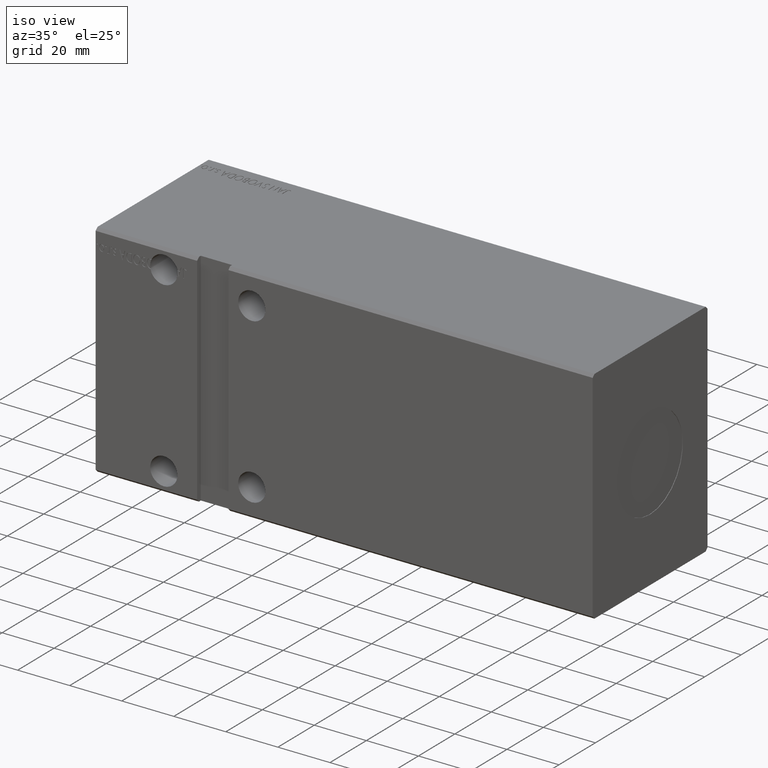
[diagram: clean part render]
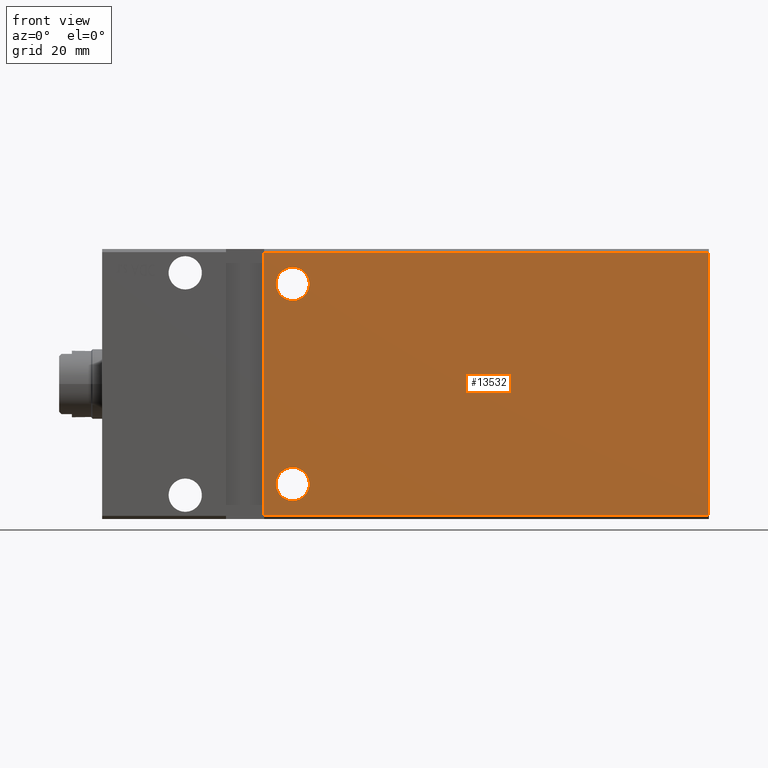
[diagram: tour spotlight — one face highlighted and labeled with its STEP entity id]
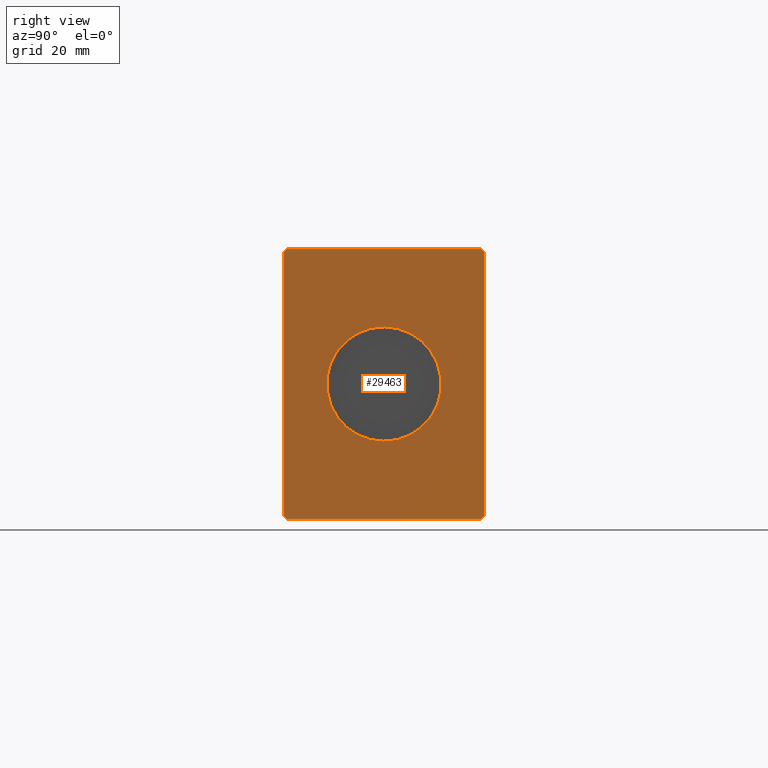
[diagram: tour spotlight — one face highlighted and labeled with its STEP entity id]
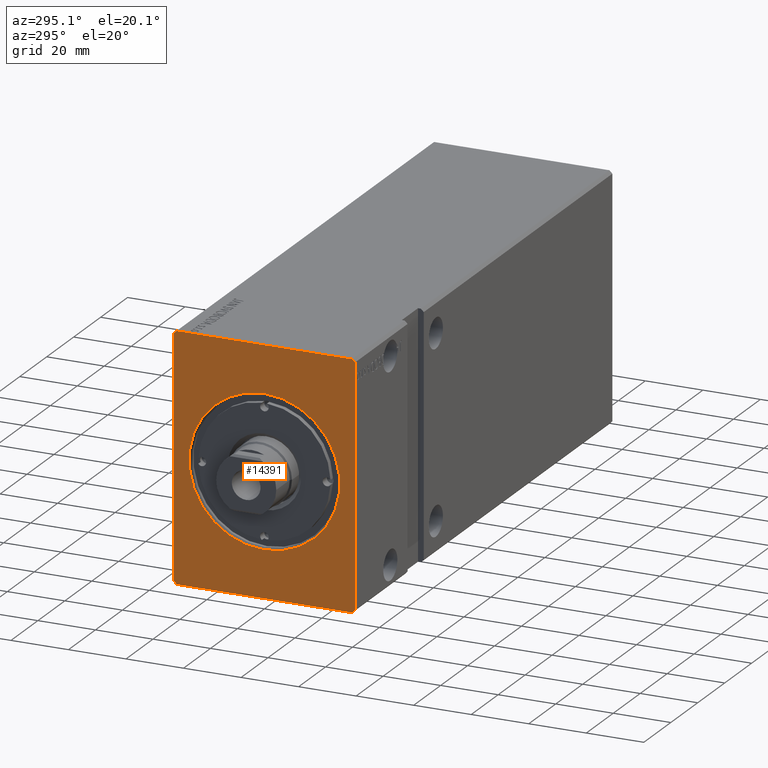
[diagram: tour spotlight — one face highlighted and labeled with its STEP entity id]
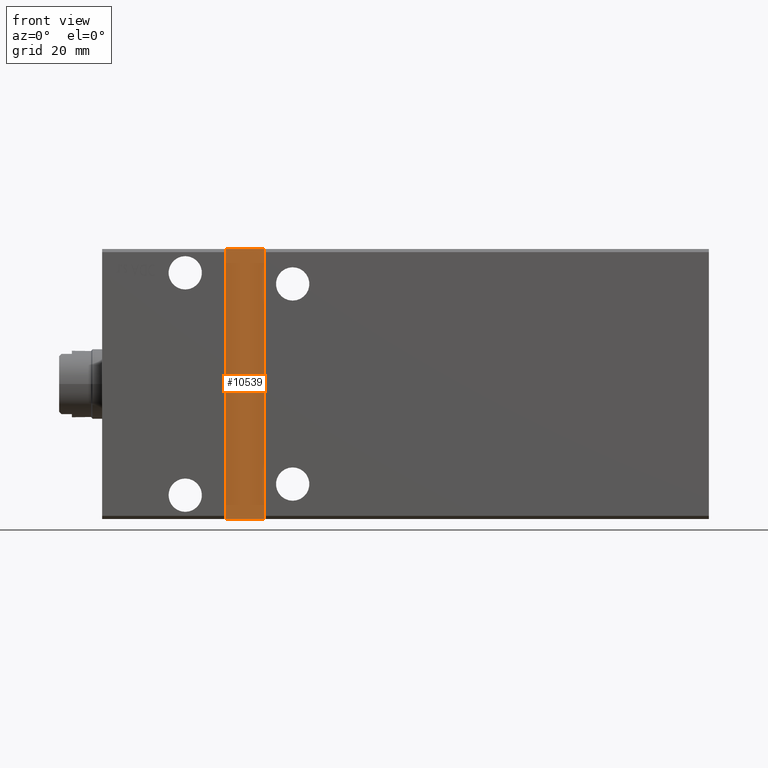
[diagram: tour spotlight — one face highlighted and labeled with its STEP entity id]
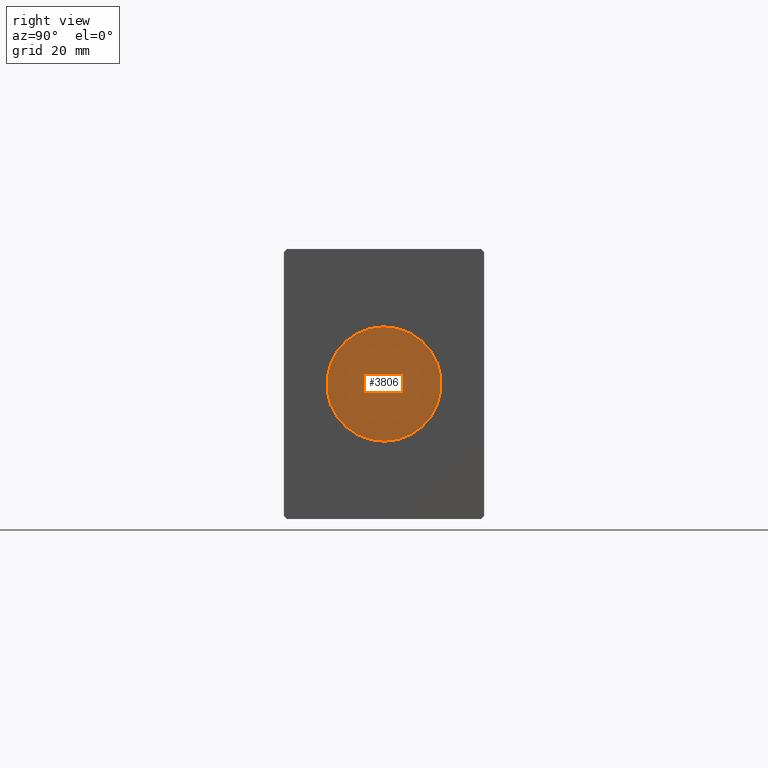
[diagram: tour spotlight — one face highlighted and labeled with its STEP entity id]
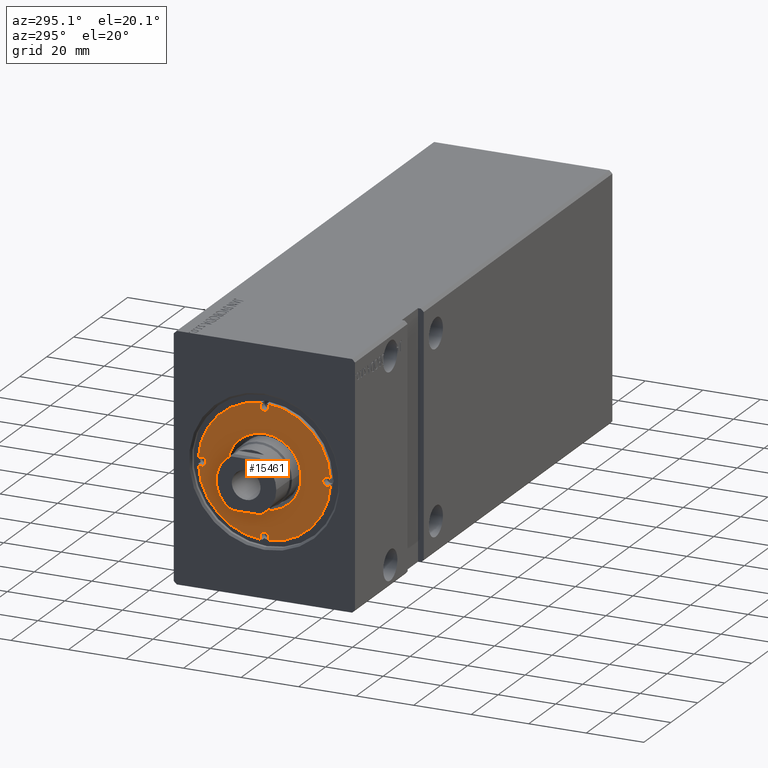
[diagram: tour spotlight — one face highlighted and labeled with its STEP entity id]
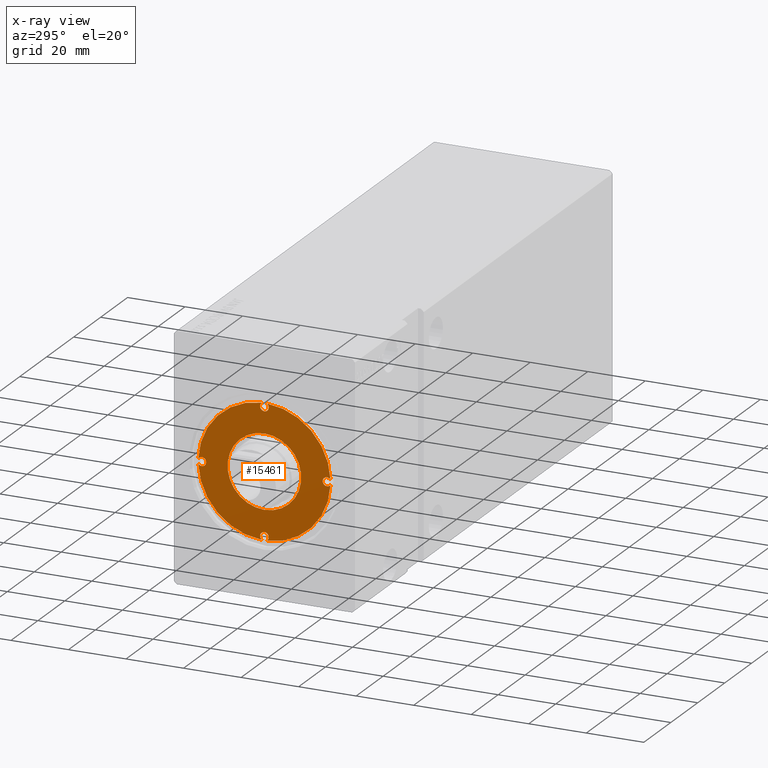
[diagram: x-ray of the same camera — body ghosted, this tour face saturated]
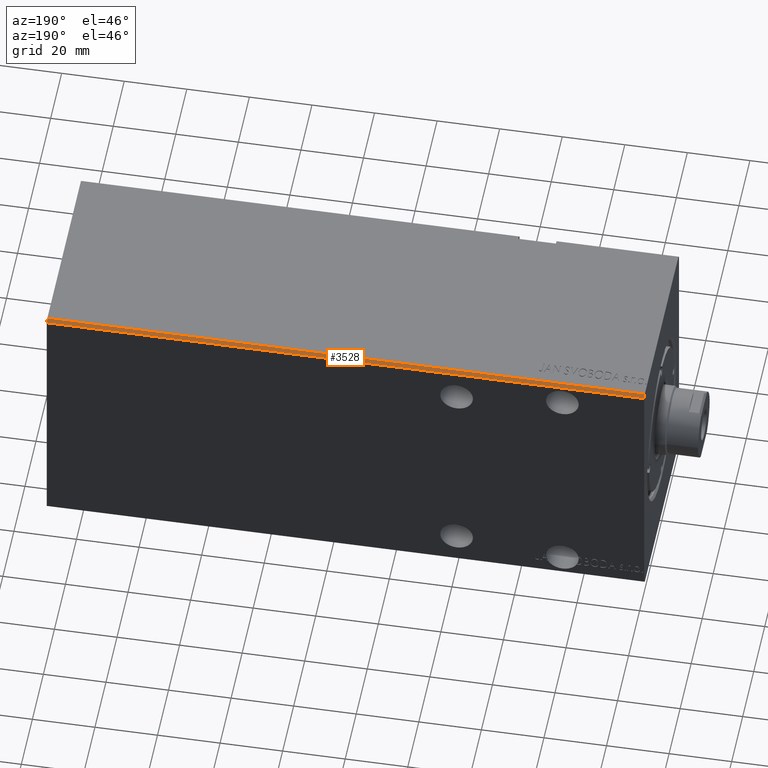
[diagram: tour spotlight — one face highlighted and labeled with its STEP entity id]
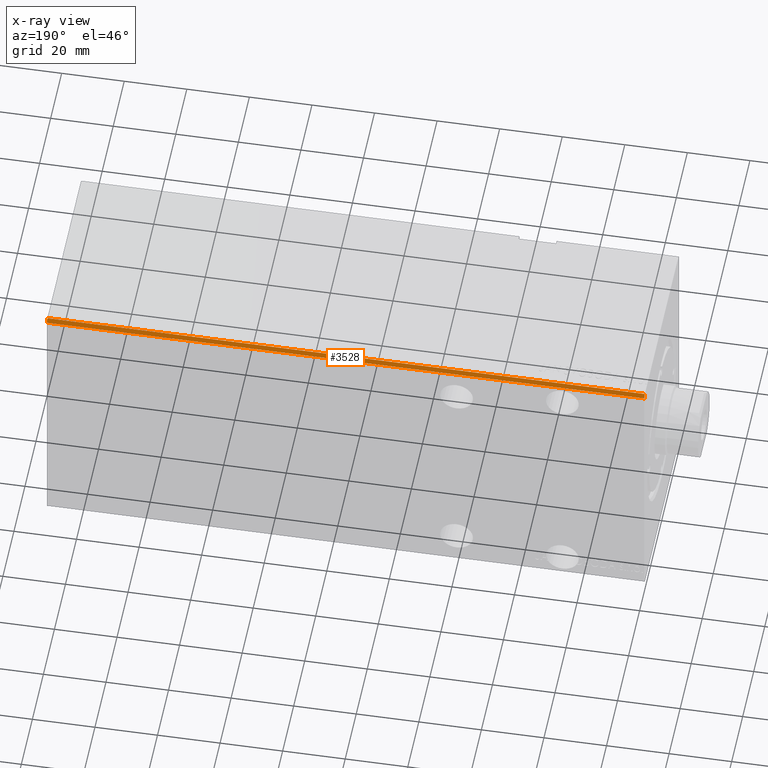
[diagram: x-ray of the same camera — body ghosted, this tour face saturated]
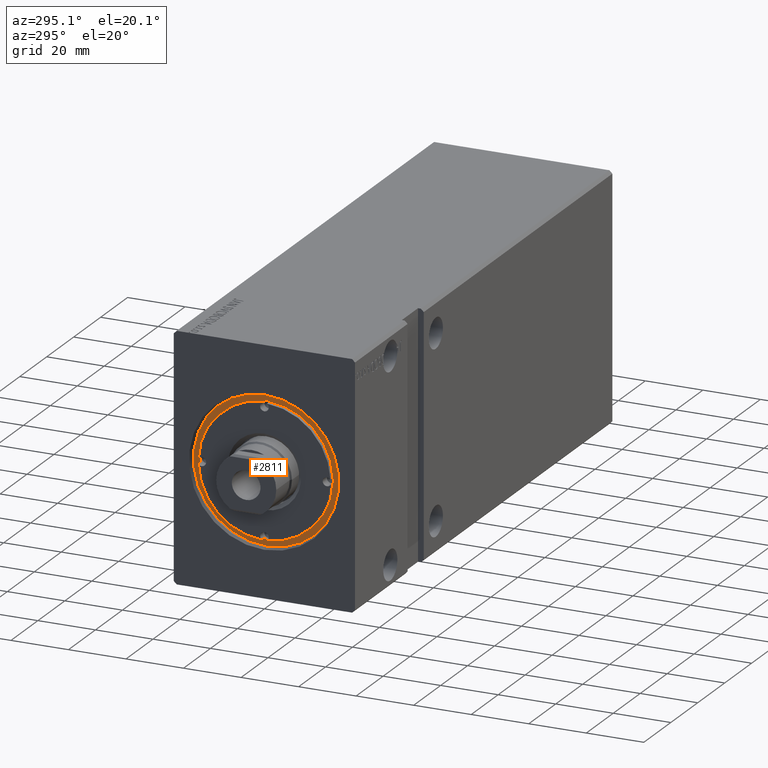
[diagram: tour spotlight — one face highlighted and labeled with its STEP entity id]
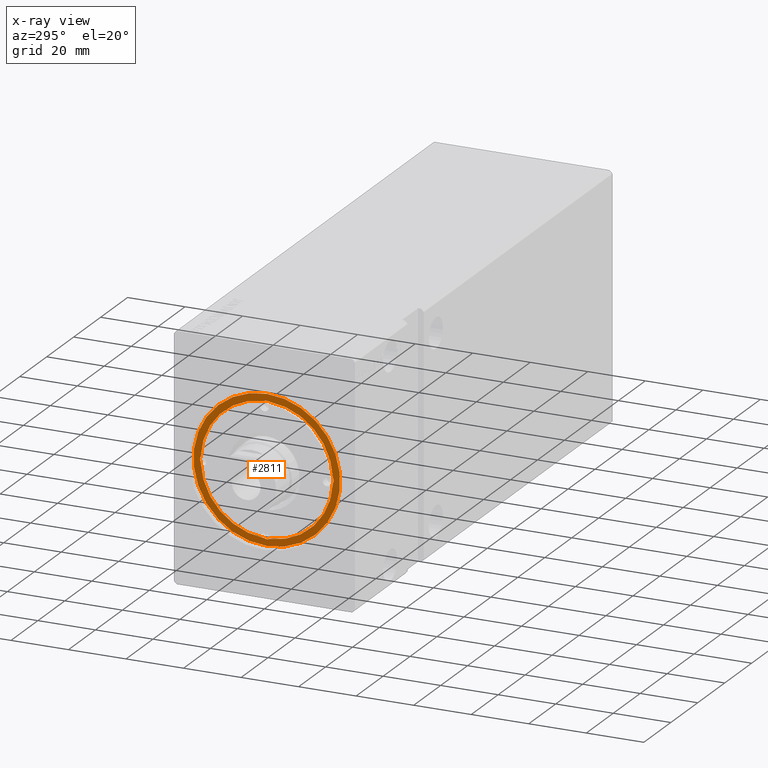
[diagram: x-ray of the same camera — body ghosted, this tour face saturated]
A machine part: a face-by-face anatomy tour. The part has 779 B-rep faces; the first image is the clean iso view, then the 8 largest visible faces are spotlighted one at a time (largest first), each with its STEP entity span.

Face 1 — front view, entity #13532. In plain terms, the highlighted planar face has unit normal (0, 1, 0).
Definition (entity closure, byte-faithful):
#1097 = CIRCLE ( 'NONE', #9478, 5.249999999999997335 ) ;
#1623 = LINE ( 'NONE', #31903, #38958 ) ;
#1904 = CARTESIAN_POINT ( 'NONE',  ( 60.00000000000000711, -31.50000000000000000, 31.50000000000000000 ) ) ;
#2904 = CARTESIAN_POINT ( 'NONE',  ( 191.0000000000000000, -31.50000000000000000, -41.50000000000000711 ) ) ;
#3318 = EDGE_CURVE ( 'NONE', #8959, #9209, #10106, .T. ) ;
#3758 = AXIS2_PLACEMENT_3D ( 'NONE', #7944, #23897, #29939 ) ;
#3798 = ORIENTED_EDGE ( 'NONE', *, *, #15793, .T. ) ;
#3846 = VERTEX_POINT ( 'NONE', #9216 ) ;
#4408 = VERTEX_POINT ( 'NONE', #37583 ) ;
#4856 = EDGE_CURVE ( 'NONE', #20994, #3846, #1623, .T. ) ;
#4937 = EDGE_LOOP ( 'NONE', ( #26960, #26504 ) ) ;
#4948 = CIRCLE ( 'NONE', #16578, 5.250000000000004441 ) ;
#6426 = DIRECTION ( 'NONE',  ( -1.000000000000000000, -0.000000000000000000, -0.000000000000000000 ) ) ;
#6937 = DIRECTION ( 'NONE',  ( 0.000000000000000000, -1.000000000000000000, -5.507058653894625853E-17 ) ) ;
#6946 = ORIENTED_EDGE ( 'NONE', *, *, #13357, .F. ) ;
#7123 = ORIENTED_EDGE ( 'NONE', *, *, #3318, .F. ) ;
#7671 = CARTESIAN_POINT ( 'NONE',  ( 60.00000000000001421, -31.50000000000000000, -26.24999999999999645 ) ) ;
#7944 = CARTESIAN_POINT ( 'NONE',  ( 60.00000000000000711, -31.50000000000000000, 31.50000000000000000 ) ) ;
#8266 = EDGE_LOOP ( 'NONE', ( #3798, #23159 ) ) ;
#8959 = VERTEX_POINT ( 'NONE', #37470 ) ;
#9209 = VERTEX_POINT ( 'NONE', #2904 ) ;
#9216 = CARTESIAN_POINT ( 'NONE',  ( 51.00000000000000000, -31.50000000000000000, 41.49999999999999289 ) ) ;
#9478 = AXIS2_PLACEMENT_3D ( 'NONE', #1904, #17441, #23516 ) ;
#9647 = VERTEX_POINT ( 'NONE', #7671 ) ;
#10106 = LINE ( 'NONE', #31515, #38931 ) ;
#10156 = VECTOR ( 'NONE', #6426, 1000.000000000000000 ) ;
#11740 = VECTOR ( 'NONE', #30972, 1000.000000000000000 ) ;
#12314 = FACE_BOUND ( 'NONE', #4937, .T. ) ;
#12997 = CARTESIAN_POINT ( 'NONE',  ( 60.00000000000000711, -31.50000000000000000, 26.25000000000000711 ) ) ;
#13357 = EDGE_CURVE ( 'NONE', #9209, #20994, #24523, .T. ) ;
#13532 = ADVANCED_FACE ( 'NONE', ( #12314, #14741, #24636 ), #36127, .F. ) ;
#14741 = FACE_OUTER_BOUND ( 'NONE', #26565, .T. ) ;
#15793 = EDGE_CURVE ( 'NONE', #20682, #4408, #1097, .T. ) ;
#15941 = EDGE_CURVE ( 'NONE', #23261, #9647, #4948, .T. ) ;
#16578 = AXIS2_PLACEMENT_3D ( 'NONE', #19440, #25302, #19239 ) ;
#17441 = DIRECTION ( 'NONE',  ( -0.000000000000000000, 1.000000000000000000, 5.507058653894625853E-17 ) ) ;
#18365 = LINE ( 'NONE', #30867, #10156 ) ;
#19239 = DIRECTION ( 'NONE',  ( 0.000000000000000000, 0.000000000000000000, -1.000000000000000000 ) ) ;
#19353 = ORIENTED_EDGE ( 'NONE', *, *, #23118, .T. ) ;
#19440 = CARTESIAN_POINT ( 'NONE',  ( 60.00000000000001421, -31.50000000000000000, -31.50000000000000000 ) ) ;
#20394 = DIRECTION ( 'NONE',  ( -1.632680918566406547E-16, -0.000000000000000000, 1.000000000000000000 ) ) ;
#20682 = VERTEX_POINT ( 'NONE', #12997 ) ;
#20800 = CARTESIAN_POINT ( 'NONE',  ( 191.0000000000000000, -31.50000000000000000, 41.49999999999999289 ) ) ;
#20994 = VERTEX_POINT ( 'NONE', #28464 ) ;
#22505 = CARTESIAN_POINT ( 'NONE',  ( 60.00000000000001421, -31.50000000000000000, -31.50000000000000000 ) ) ;
#22586 = CARTESIAN_POINT ( 'NONE',  ( 60.00000000000001421, -31.50000000000000000, -36.75000000000000711 ) ) ;
#23118 = EDGE_CURVE ( 'NONE', #8959, #3846, #18365, .T. ) ;
#23159 = ORIENTED_EDGE ( 'NONE', *, *, #29586, .T. ) ;
#23261 = VERTEX_POINT ( 'NONE', #22586 ) ;
#23516 = DIRECTION ( 'NONE',  ( 0.000000000000000000, 0.000000000000000000, 1.000000000000000000 ) ) ;
#23897 = DIRECTION ( 'NONE',  ( -0.000000000000000000, 1.000000000000000000, 5.507058653894625853E-17 ) ) ;
#24035 = DIRECTION ( 'NONE',  ( 0.000000000000000000, -0.000000000000000000, 1.000000000000000000 ) ) ;
#24523 = LINE ( 'NONE', #37029, #11740 ) ;
#24636 = FACE_BOUND ( 'NONE', #8266, .T. ) ;
#25268 = DIRECTION ( 'NONE',  ( 0.000000000000000000, 0.000000000000000000, -1.000000000000000000 ) ) ;
#25302 = DIRECTION ( 'NONE',  ( 0.000000000000000000, -1.000000000000000000, -5.507058653894625853E-17 ) ) ;
#25337 = DIRECTION ( 'NONE',  ( 0.000000000000000000, 0.000000000000000000, -1.000000000000000000 ) ) ;
#26504 = ORIENTED_EDGE ( 'NONE', *, *, #37801, .F. ) ;
#26565 = EDGE_LOOP ( 'NONE', ( #19353, #36262, #6946, #7123 ) ) ;
#26960 = ORIENTED_EDGE ( 'NONE', *, *, #15941, .F. ) ;
#27059 = DIRECTION ( 'NONE',  ( -0.000000000000000000, 1.000000000000000000, 0.000000000000000000 ) ) ;
#28410 = AXIS2_PLACEMENT_3D ( 'NONE', #20800, #27059, #24035 ) ;
#28464 = CARTESIAN_POINT ( 'NONE',  ( 51.00000000000000711, -31.50000000000000000, -41.50000000000000711 ) ) ;
#29586 = EDGE_CURVE ( 'NONE', #4408, #20682, #38570, .T. ) ;
#29939 = DIRECTION ( 'NONE',  ( 0.000000000000000000, 0.000000000000000000, 1.000000000000000000 ) ) ;
#30382 = AXIS2_PLACEMENT_3D ( 'NONE', #22505, #6937, #25337 ) ;
#30867 = CARTESIAN_POINT ( 'NONE',  ( 191.0000000000000000, -31.50000000000000000, 41.49999999999999289 ) ) ;
#30972 = DIRECTION ( 'NONE',  ( -1.000000000000000000, -0.000000000000000000, -0.000000000000000000 ) ) ;
#31515 = CARTESIAN_POINT ( 'NONE',  ( 191.0000000000000000, -31.50000000000000000, 41.49999999999999289 ) ) ;
#31903 = CARTESIAN_POINT ( 'NONE',  ( 51.00000000000000000, -31.50000000000000000, 42.49999999999999289 ) ) ;
#32977 = CIRCLE ( 'NONE', #30382, 5.250000000000004441 ) ;
#36127 = PLANE ( 'NONE',  #28410 ) ;
#36262 = ORIENTED_EDGE ( 'NONE', *, *, #4856, .F. ) ;
#37029 = CARTESIAN_POINT ( 'NONE',  ( 191.0000000000000000, -31.50000000000000000, -41.50000000000000711 ) ) ;
#37470 = CARTESIAN_POINT ( 'NONE',  ( 191.0000000000000000, -31.50000000000000000, 41.49999999999999289 ) ) ;
#37583 = CARTESIAN_POINT ( 'NONE',  ( 60.00000000000000711, -31.50000000000000000, 36.75000000000000000 ) ) ;
#37801 = EDGE_CURVE ( 'NONE', #9647, #23261, #32977, .T. ) ;
#38570 = CIRCLE ( 'NONE', #3758, 5.249999999999997335 ) ;
#38931 = VECTOR ( 'NONE', #25268, 1000.000000000000000 ) ;
#38958 = VECTOR ( 'NONE', #20394, 1000.000000000000000 ) ;

Face 2 — right view, entity #29463. In plain terms, the highlighted planar face has unit normal (1, 0, 0).
Definition (entity closure, byte-faithful):
#502 = FACE_BOUND ( 'NONE', #32199, .T. ) ;
#514 = VECTOR ( 'NONE', #24430, 999.9999999999998863 ) ;
#626 = CIRCLE ( 'NONE', #19330, 18.00000000000000000 ) ;
#865 = VERTEX_POINT ( 'NONE', #31431 ) ;
#914 = DIRECTION ( 'NONE',  ( 0.000000000000000000, -0.7071067811865474617, 0.7071067811865474617 ) ) ;
#2117 = VERTEX_POINT ( 'NONE', #8341 ) ;
#2904 = CARTESIAN_POINT ( 'NONE',  ( 191.0000000000000000, -31.50000000000000000, -41.50000000000000711 ) ) ;
#3043 = LINE ( 'NONE', #30904, #14801 ) ;
#3318 = EDGE_CURVE ( 'NONE', #8959, #9209, #10106, .T. ) ;
#3576 = ORIENTED_EDGE ( 'NONE', *, *, #3318, .T. ) ;
#3928 = LINE ( 'NONE', #15858, #8225 ) ;
#4189 = ORIENTED_EDGE ( 'NONE', *, *, #37038, .F. ) ;
#4932 = ORIENTED_EDGE ( 'NONE', *, *, #27692, .T. ) ;
#5852 = CARTESIAN_POINT ( 'NONE',  ( 191.0000000000000000, 31.50000000000001421, 41.49999999999999289 ) ) ;
#6054 = CARTESIAN_POINT ( 'NONE',  ( 191.0000000000000000, -30.50000000000000711, -42.50000000000000711 ) ) ;
#6436 = CARTESIAN_POINT ( 'NONE',  ( 191.0000000000000000, 2.204364238465235428E-15, 18.00000000000000000 ) ) ;
#6536 = ORIENTED_EDGE ( 'NONE', *, *, #26429, .T. ) ;
#6583 = VERTEX_POINT ( 'NONE', #17466 ) ;
#7160 = VERTEX_POINT ( 'NONE', #6436 ) ;
#8225 = VECTOR ( 'NONE', #914, 1000.000000000000114 ) ;
#8341 = CARTESIAN_POINT ( 'NONE',  ( 191.0000000000000000, 30.50000000000001776, -42.50000000000000711 ) ) ;
#8942 = DIRECTION ( 'NONE',  ( 1.000000000000000000, 0.000000000000000000, 0.000000000000000000 ) ) ;
#8959 = VERTEX_POINT ( 'NONE', #37470 ) ;
#9209 = VERTEX_POINT ( 'NONE', #2904 ) ;
#9272 = EDGE_LOOP ( 'NONE', ( #4932, #33281, #28939, #3576, #25900, #39281, #6536, #24020 ) ) ;
#9288 = DIRECTION ( 'NONE',  ( 0.000000000000000000, 1.000000000000000000, 0.000000000000000000 ) ) ;
#10106 = LINE ( 'NONE', #31515, #38931 ) ;
#10388 = CIRCLE ( 'NONE', #38749, 18.00000000000000000 ) ;
#11412 = CARTESIAN_POINT ( 'NONE',  ( 191.0000000000000000, -30.50000000000000711, -42.50000000000000711 ) ) ;
#12829 = FACE_OUTER_BOUND ( 'NONE', #9272, .T. ) ;
#13068 = ORIENTED_EDGE ( 'NONE', *, *, #33055, .F. ) ;
#14801 = VECTOR ( 'NONE', #17996, 1000.000000000000000 ) ;
#15001 = LINE ( 'NONE', #27317, #37451 ) ;
#15495 = CARTESIAN_POINT ( 'NONE',  ( 191.0000000000000000, -30.50000000000000355, 42.49999999999999289 ) ) ;
#15858 = CARTESIAN_POINT ( 'NONE',  ( 191.0000000000000000, 31.50000000000001421, 41.49999999999999289 ) ) ;
#16050 = PLANE ( 'NONE',  #23126 ) ;
#16112 = CARTESIAN_POINT ( 'NONE',  ( 191.0000000000000000, -31.50000000000000000, -41.50000000000000711 ) ) ;
#16319 = LINE ( 'NONE', #16112, #33379 ) ;
#16452 = CARTESIAN_POINT ( 'NONE',  ( 191.0000000000000000, 30.50000000000001776, -42.50000000000000711 ) ) ;
#17466 = CARTESIAN_POINT ( 'NONE',  ( 191.0000000000000000, 31.50000000000001421, -41.50000000000000711 ) ) ;
#17996 = DIRECTION ( 'NONE',  ( 0.000000000000000000, 0.000000000000000000, 1.000000000000000000 ) ) ;
#18110 = VERTEX_POINT ( 'NONE', #5852 ) ;
#18694 = CARTESIAN_POINT ( 'NONE',  ( 191.0000000000000000, 30.50000000000001421, 42.49999999999999289 ) ) ;
#19176 = DIRECTION ( 'NONE',  ( 1.000000000000000000, 0.000000000000000000, 0.000000000000000000 ) ) ;
#19330 = AXIS2_PLACEMENT_3D ( 'NONE', #33976, #8942, #27720 ) ;
#19685 = CARTESIAN_POINT ( 'NONE',  ( 191.0000000000000000, 0.000000000000000000, 0.000000000000000000 ) ) ;
#21785 = DIRECTION ( 'NONE',  ( 0.000000000000000000, 0.7071067811865451302, -0.7071067811865500152 ) ) ;
#21806 = CARTESIAN_POINT ( 'NONE',  ( 191.0000000000000000, -30.50000000000000355, 42.49999999999999289 ) ) ;
#22405 = CARTESIAN_POINT ( 'NONE',  ( 191.0000000000000000, 0.000000000000000000, 0.000000000000000000 ) ) ;
#23126 = AXIS2_PLACEMENT_3D ( 'NONE', #19685, #28560, #32185 ) ;
#23161 = VECTOR ( 'NONE', #31784, 999.9999999999998863 ) ;
#23854 = EDGE_CURVE ( 'NONE', #25190, #8959, #36728, .T. ) ;
#24020 = ORIENTED_EDGE ( 'NONE', *, *, #33481, .T. ) ;
#24430 = DIRECTION ( 'NONE',  ( 0.000000000000000000, -0.7071067811865462405, -0.7071067811865489050 ) ) ;
#24455 = VERTEX_POINT ( 'NONE', #11412 ) ;
#25190 = VERTEX_POINT ( 'NONE', #15495 ) ;
#25268 = DIRECTION ( 'NONE',  ( 0.000000000000000000, 0.000000000000000000, -1.000000000000000000 ) ) ;
#25900 = ORIENTED_EDGE ( 'NONE', *, *, #28267, .T. ) ;
#26024 = EDGE_CURVE ( 'NONE', #24455, #2117, #27663, .T. ) ;
#26429 = EDGE_CURVE ( 'NONE', #2117, #6583, #35202, .T. ) ;
#27317 = CARTESIAN_POINT ( 'NONE',  ( 191.0000000000000000, 30.50000000000001421, 42.49999999999999289 ) ) ;
#27663 = LINE ( 'NONE', #6054, #37313 ) ;
#27692 = EDGE_CURVE ( 'NONE', #18110, #30103, #3928, .T. ) ;
#27720 = DIRECTION ( 'NONE',  ( 0.000000000000000000, 0.000000000000000000, -1.000000000000000000 ) ) ;
#28267 = EDGE_CURVE ( 'NONE', #9209, #24455, #16319, .T. ) ;
#28560 = DIRECTION ( 'NONE',  ( 1.000000000000000000, 0.000000000000000000, 0.000000000000000000 ) ) ;
#28939 = ORIENTED_EDGE ( 'NONE', *, *, #23854, .T. ) ;
#29463 = ADVANCED_FACE ( 'NONE', ( #502, #12829 ), #16050, .T. ) ;
#30103 = VERTEX_POINT ( 'NONE', #18694 ) ;
#30904 = CARTESIAN_POINT ( 'NONE',  ( 191.0000000000000000, 31.50000000000001421, -41.50000000000000711 ) ) ;
#31431 = CARTESIAN_POINT ( 'NONE',  ( 191.0000000000000000, 0.000000000000000000, -18.00000000000000000 ) ) ;
#31481 = DIRECTION ( 'NONE',  ( 0.000000000000000000, 0.000000000000000000, -1.000000000000000000 ) ) ;
#31515 = CARTESIAN_POINT ( 'NONE',  ( 191.0000000000000000, -31.50000000000000000, 41.49999999999999289 ) ) ;
#31784 = DIRECTION ( 'NONE',  ( 0.000000000000000000, 0.7071067811865462405, 0.7071067811865489050 ) ) ;
#32185 = DIRECTION ( 'NONE',  ( 0.000000000000000000, 0.000000000000000000, -1.000000000000000000 ) ) ;
#32199 = EDGE_LOOP ( 'NONE', ( #4189, #13068 ) ) ;
#33055 = EDGE_CURVE ( 'NONE', #7160, #865, #626, .T. ) ;
#33281 = ORIENTED_EDGE ( 'NONE', *, *, #37246, .T. ) ;
#33379 = VECTOR ( 'NONE', #21785, 1000.000000000000114 ) ;
#33481 = EDGE_CURVE ( 'NONE', #6583, #18110, #3043, .T. ) ;
#33976 = CARTESIAN_POINT ( 'NONE',  ( 191.0000000000000000, 0.000000000000000000, 0.000000000000000000 ) ) ;
#35202 = LINE ( 'NONE', #16452, #23161 ) ;
#36728 = LINE ( 'NONE', #21806, #514 ) ;
#37038 = EDGE_CURVE ( 'NONE', #865, #7160, #10388, .T. ) ;
#37246 = EDGE_CURVE ( 'NONE', #30103, #25190, #15001, .T. ) ;
#37313 = VECTOR ( 'NONE', #9288, 1000.000000000000000 ) ;
#37451 = VECTOR ( 'NONE', #39620, 1000.000000000000000 ) ;
#37470 = CARTESIAN_POINT ( 'NONE',  ( 191.0000000000000000, -31.50000000000000000, 41.49999999999999289 ) ) ;
#38749 = AXIS2_PLACEMENT_3D ( 'NONE', #22405, #19176, #31481 ) ;
#38931 = VECTOR ( 'NONE', #25268, 1000.000000000000000 ) ;
#39281 = ORIENTED_EDGE ( 'NONE', *, *, #26024, .T. ) ;
#39620 = DIRECTION ( 'NONE',  ( 0.000000000000000000, -1.000000000000000000, 0.000000000000000000 ) ) ;

Face 3 — auxiliary view, entity #14391. In plain terms, the highlighted planar face has unit normal (1, 0, 0).
Definition (entity closure, byte-faithful):
#36 = CARTESIAN_POINT ( 'NONE',  ( 0.000000000000000000, 0.000000000000000000, 26.20000000000005613 ) ) ;
#49 = AXIS2_PLACEMENT_3D ( 'NONE', #20853, #29928, #11970 ) ;
#1972 = ORIENTED_EDGE ( 'NONE', *, *, #22044, .F. ) ;
#2347 = ORIENTED_EDGE ( 'NONE', *, *, #15811, .F. ) ;
#2668 = FACE_BOUND ( 'NONE', #29187, .T. ) ;
#2703 = DIRECTION ( 'NONE',  ( 0.000000000000000000, -0.7071067811865462405, -0.7071067811865489050 ) ) ;
#3007 = ORIENTED_EDGE ( 'NONE', *, *, #13869, .F. ) ;
#3314 = AXIS2_PLACEMENT_3D ( 'NONE', #13087, #31634, #27821 ) ;
#3925 = VECTOR ( 'NONE', #36386, 999.9999999999998863 ) ;
#3999 = VECTOR ( 'NONE', #12065, 1000.000000000000000 ) ;
#5348 = ORIENTED_EDGE ( 'NONE', *, *, #9203, .F. ) ;
#6149 = CARTESIAN_POINT ( 'NONE',  ( 0.000000000000000000, -30.50000000000000711, -42.50000000000000711 ) ) ;
#6357 = CARTESIAN_POINT ( 'NONE',  ( 0.000000000000000000, 3.208574613766072005E-15, -26.20000000000005613 ) ) ;
#6923 = AXIS2_PLACEMENT_3D ( 'NONE', #13196, #9360, #37620 ) ;
#7337 = VERTEX_POINT ( 'NONE', #36035 ) ;
#8329 = CARTESIAN_POINT ( 'NONE',  ( 0.000000000000000000, -31.50000000000000000, 41.49999999999999289 ) ) ;
#8755 = LINE ( 'NONE', #21891, #13775 ) ;
#9108 = CARTESIAN_POINT ( 'NONE',  ( 0.000000000000000000, 31.50000000000001421, -41.50000000000000711 ) ) ;
#9203 = EDGE_CURVE ( 'NONE', #11844, #37351, #12602, .T. ) ;
#9360 = DIRECTION ( 'NONE',  ( 1.000000000000000000, 0.000000000000000000, 0.000000000000000000 ) ) ;
#10293 = VERTEX_POINT ( 'NONE', #36 ) ;
#11774 = LINE ( 'NONE', #33555, #3925 ) ;
#11844 = VERTEX_POINT ( 'NONE', #32435 ) ;
#11970 = DIRECTION ( 'NONE',  ( 0.000000000000000000, 0.000000000000000000, -1.000000000000000000 ) ) ;
#12065 = DIRECTION ( 'NONE',  ( 0.000000000000000000, -1.000000000000000000, 0.000000000000000000 ) ) ;
#12602 = LINE ( 'NONE', #37416, #18162 ) ;
#12662 = EDGE_CURVE ( 'NONE', #10293, #30102, #16235, .T. ) ;
#13087 = CARTESIAN_POINT ( 'NONE',  ( 0.000000000000000000, 0.000000000000000000, 0.000000000000000000 ) ) ;
#13196 = CARTESIAN_POINT ( 'NONE',  ( 0.000000000000000000, 0.000000000000000000, 0.000000000000000000 ) ) ;
#13350 = VECTOR ( 'NONE', #17836, 1000.000000000000114 ) ;
#13775 = VECTOR ( 'NONE', #24310, 1000.000000000000114 ) ;
#13869 = EDGE_CURVE ( 'NONE', #31392, #11844, #30422, .T. ) ;
#13908 = CARTESIAN_POINT ( 'NONE',  ( 0.000000000000000000, 31.50000000000001421, -41.50000000000000711 ) ) ;
#14391 = ADVANCED_FACE ( 'NONE', ( #2668, #18228 ), #36575, .F. ) ;
#14598 = CARTESIAN_POINT ( 'NONE',  ( 0.000000000000000000, -31.50000000000000000, 41.49999999999999289 ) ) ;
#15650 = ORIENTED_EDGE ( 'NONE', *, *, #25566, .F. ) ;
#15811 = EDGE_CURVE ( 'NONE', #7337, #31392, #35808, .T. ) ;
#16235 = CIRCLE ( 'NONE', #3314, 26.20000000000005613 ) ;
#16660 = VECTOR ( 'NONE', #23498, 1000.000000000000000 ) ;
#17836 = DIRECTION ( 'NONE',  ( 0.000000000000000000, -0.7071067811865474617, 0.7071067811865474617 ) ) ;
#17986 = CARTESIAN_POINT ( 'NONE',  ( 0.000000000000000000, -31.50000000000000000, -41.50000000000000711 ) ) ;
#18162 = VECTOR ( 'NONE', #2703, 999.9999999999998863 ) ;
#18228 = FACE_OUTER_BOUND ( 'NONE', #39881, .T. ) ;
#19339 = VERTEX_POINT ( 'NONE', #37058 ) ;
#19571 = CARTESIAN_POINT ( 'NONE',  ( 0.000000000000000000, -30.50000000000000711, -42.50000000000000711 ) ) ;
#20477 = CARTESIAN_POINT ( 'NONE',  ( 0.000000000000000000, 31.50000000000001421, 41.49999999999999289 ) ) ;
#20518 = EDGE_CURVE ( 'NONE', #25965, #29372, #8755, .T. ) ;
#20550 = VECTOR ( 'NONE', #22403, 1000.000000000000000 ) ;
#20853 = CARTESIAN_POINT ( 'NONE',  ( 0.000000000000000000, 0.000000000000000000, 0.000000000000000000 ) ) ;
#21891 = CARTESIAN_POINT ( 'NONE',  ( 0.000000000000000000, -31.50000000000000000, -41.50000000000000711 ) ) ;
#22044 = EDGE_CURVE ( 'NONE', #36254, #7337, #34334, .T. ) ;
#22403 = DIRECTION ( 'NONE',  ( 0.000000000000000000, 1.000000000000000000, 0.000000000000000000 ) ) ;
#22651 = EDGE_CURVE ( 'NONE', #30102, #10293, #31434, .T. ) ;
#22789 = ORIENTED_EDGE ( 'NONE', *, *, #12662, .T. ) ;
#23498 = DIRECTION ( 'NONE',  ( 0.000000000000000000, 0.000000000000000000, -1.000000000000000000 ) ) ;
#24310 = DIRECTION ( 'NONE',  ( 0.000000000000000000, 0.7071067811865451302, -0.7071067811865500152 ) ) ;
#25018 = EDGE_CURVE ( 'NONE', #29372, #19339, #26034, .T. ) ;
#25170 = ORIENTED_EDGE ( 'NONE', *, *, #20518, .F. ) ;
#25566 = EDGE_CURVE ( 'NONE', #37351, #25965, #39225, .T. ) ;
#25808 = ORIENTED_EDGE ( 'NONE', *, *, #22651, .T. ) ;
#25965 = VERTEX_POINT ( 'NONE', #17986 ) ;
#26034 = LINE ( 'NONE', #19571, #20550 ) ;
#27406 = CARTESIAN_POINT ( 'NONE',  ( 0.000000000000000000, 30.50000000000001421, 42.49999999999999289 ) ) ;
#27821 = DIRECTION ( 'NONE',  ( 0.000000000000000000, 0.000000000000000000, -1.000000000000000000 ) ) ;
#27886 = CARTESIAN_POINT ( 'NONE',  ( 0.000000000000000000, 30.50000000000001421, 42.49999999999999289 ) ) ;
#29187 = EDGE_LOOP ( 'NONE', ( #22789, #25808 ) ) ;
#29372 = VERTEX_POINT ( 'NONE', #6149 ) ;
#29928 = DIRECTION ( 'NONE',  ( 1.000000000000000000, 0.000000000000000000, 0.000000000000000000 ) ) ;
#30102 = VERTEX_POINT ( 'NONE', #6357 ) ;
#30422 = LINE ( 'NONE', #27406, #3999 ) ;
#30908 = DIRECTION ( 'NONE',  ( 0.000000000000000000, 0.000000000000000000, 1.000000000000000000 ) ) ;
#31392 = VERTEX_POINT ( 'NONE', #27886 ) ;
#31434 = CIRCLE ( 'NONE', #6923, 26.20000000000005613 ) ;
#31634 = DIRECTION ( 'NONE',  ( 1.000000000000000000, 0.000000000000000000, 0.000000000000000000 ) ) ;
#32435 = CARTESIAN_POINT ( 'NONE',  ( 0.000000000000000000, -30.50000000000000355, 42.49999999999999289 ) ) ;
#32880 = ORIENTED_EDGE ( 'NONE', *, *, #37244, .F. ) ;
#33555 = CARTESIAN_POINT ( 'NONE',  ( 0.000000000000000000, 30.50000000000001776, -42.50000000000000711 ) ) ;
#34334 = LINE ( 'NONE', #9108, #37231 ) ;
#34784 = ORIENTED_EDGE ( 'NONE', *, *, #25018, .F. ) ;
#35808 = LINE ( 'NONE', #20477, #13350 ) ;
#36035 = CARTESIAN_POINT ( 'NONE',  ( 0.000000000000000000, 31.50000000000001421, 41.49999999999999289 ) ) ;
#36254 = VERTEX_POINT ( 'NONE', #13908 ) ;
#36386 = DIRECTION ( 'NONE',  ( 0.000000000000000000, 0.7071067811865462405, 0.7071067811865489050 ) ) ;
#36575 = PLANE ( 'NONE',  #49 ) ;
#37058 = CARTESIAN_POINT ( 'NONE',  ( 0.000000000000000000, 30.50000000000001776, -42.50000000000000711 ) ) ;
#37231 = VECTOR ( 'NONE', #30908, 1000.000000000000000 ) ;
#37244 = EDGE_CURVE ( 'NONE', #19339, #36254, #11774, .T. ) ;
#37351 = VERTEX_POINT ( 'NONE', #8329 ) ;
#37416 = CARTESIAN_POINT ( 'NONE',  ( 0.000000000000000000, -30.50000000000000355, 42.49999999999999289 ) ) ;
#37620 = DIRECTION ( 'NONE',  ( 0.000000000000000000, 0.000000000000000000, -1.000000000000000000 ) ) ;
#39225 = LINE ( 'NONE', #14598, #16660 ) ;
#39881 = EDGE_LOOP ( 'NONE', ( #2347, #1972, #32880, #34784, #25170, #15650, #5348, #3007 ) ) ;

Face 4 — front view, entity #10539. In plain terms, the highlighted planar face has unit normal (0, -1, 0).
Definition (entity closure, byte-faithful):
#32 = DIRECTION ( 'NONE',  ( -1.000000000000000000, -0.000000000000000000, -0.000000000000000000 ) ) ;
#383 = ORIENTED_EDGE ( 'NONE', *, *, #20614, .T. ) ;
#598 = VECTOR ( 'NONE', #2200, 1000.000000000000000 ) ;
#1061 = DIRECTION ( 'NONE',  ( 8.163404592832032733E-17, 0.000000000000000000, -1.000000000000000000 ) ) ;
#2200 = DIRECTION ( 'NONE',  ( -1.632680918566406547E-16, -0.000000000000000000, 1.000000000000000000 ) ) ;
#3493 = LINE ( 'NONE', #15822, #4110 ) ;
#3927 = VERTEX_POINT ( 'NONE', #4159 ) ;
#4110 = VECTOR ( 'NONE', #1061, 1000.000000000000000 ) ;
#4159 = CARTESIAN_POINT ( 'NONE',  ( 39.00000000000000711, -29.50000000000000000, -42.50000000000000711 ) ) ;
#7166 = AXIS2_PLACEMENT_3D ( 'NONE', #37879, #29004, #28603 ) ;
#9121 = LINE ( 'NONE', #37580, #23717 ) ;
#10539 = ADVANCED_FACE ( 'NONE', ( #16296 ), #19523, .T. ) ;
#15628 = EDGE_LOOP ( 'NONE', ( #36976, #17167, #383, #30097 ) ) ;
#15822 = CARTESIAN_POINT ( 'NONE',  ( 39.00000000000000000, -29.50000000000000000, 42.49999999999999289 ) ) ;
#16296 = FACE_OUTER_BOUND ( 'NONE', #15628, .T. ) ;
#17167 = ORIENTED_EDGE ( 'NONE', *, *, #23591, .T. ) ;
#18749 = CARTESIAN_POINT ( 'NONE',  ( 51.00000000000000711, -29.50000000000000000, -42.50000000000000711 ) ) ;
#19523 = PLANE ( 'NONE',  #7166 ) ;
#20447 = CARTESIAN_POINT ( 'NONE',  ( 51.00000000000000000, -29.50000000000000000, 42.49999999999999289 ) ) ;
#20614 = EDGE_CURVE ( 'NONE', #37537, #3927, #3493, .T. ) ;
#20926 = LINE ( 'NONE', #35464, #35431 ) ;
#21170 = LINE ( 'NONE', #36494, #598 ) ;
#21564 = CARTESIAN_POINT ( 'NONE',  ( 39.00000000000000000, -29.50000000000000000, 42.49999999999999289 ) ) ;
#23581 = VERTEX_POINT ( 'NONE', #20447 ) ;
#23591 = EDGE_CURVE ( 'NONE', #23581, #37537, #9121, .T. ) ;
#23717 = VECTOR ( 'NONE', #32, 1000.000000000000000 ) ;
#28340 = VERTEX_POINT ( 'NONE', #18749 ) ;
#28603 = DIRECTION ( 'NONE',  ( 0.000000000000000000, -0.000000000000000000, -1.000000000000000000 ) ) ;
#29004 = DIRECTION ( 'NONE',  ( 0.000000000000000000, -1.000000000000000000, 0.000000000000000000 ) ) ;
#30003 = DIRECTION ( 'NONE',  ( 1.000000000000000000, 0.000000000000000000, 0.000000000000000000 ) ) ;
#30097 = ORIENTED_EDGE ( 'NONE', *, *, #32685, .T. ) ;
#32220 = EDGE_CURVE ( 'NONE', #28340, #23581, #21170, .T. ) ;
#32685 = EDGE_CURVE ( 'NONE', #3927, #28340, #20926, .T. ) ;
#35431 = VECTOR ( 'NONE', #30003, 1000.000000000000000 ) ;
#35464 = CARTESIAN_POINT ( 'NONE',  ( 39.00000000000000711, -29.50000000000000000, -42.50000000000000711 ) ) ;
#36494 = CARTESIAN_POINT ( 'NONE',  ( 51.00000000000000000, -29.50000000000000000, 42.49999999999999289 ) ) ;
#36976 = ORIENTED_EDGE ( 'NONE', *, *, #32220, .T. ) ;
#37537 = VERTEX_POINT ( 'NONE', #21564 ) ;
#37580 = CARTESIAN_POINT ( 'NONE',  ( 39.00000000000000000, -29.50000000000000000, 42.49999999999999289 ) ) ;
#37879 = CARTESIAN_POINT ( 'NONE',  ( 0.000000000000000000, -29.50000000000000000, 1.101411730778925047E-16 ) ) ;

Face 5 — right view, entity #3806. In plain terms, the highlighted planar face has unit normal (1, 0, 0).
Definition (entity closure, byte-faithful):
#341 = DIRECTION ( 'NONE',  ( 1.000000000000000000, 0.000000000000000000, 0.000000000000000000 ) ) ;
#420 = DIRECTION ( 'NONE',  ( 0.000000000000000000, 0.000000000000000000, -1.000000000000000000 ) ) ;
#3477 = AXIS2_PLACEMENT_3D ( 'NONE', #24782, #341, #39901 ) ;
#3806 = ADVANCED_FACE ( 'NONE', ( #33651 ), #25373, .T. ) ;
#4333 = DIRECTION ( 'NONE',  ( 0.000000000000000000, 0.000000000000000000, -1.000000000000000000 ) ) ;
#5814 = VERTEX_POINT ( 'NONE', #31468 ) ;
#7703 = CIRCLE ( 'NONE', #21258, 18.00000000000000000 ) ;
#10303 = CIRCLE ( 'NONE', #16740, 18.00000000000000000 ) ;
#11660 = VERTEX_POINT ( 'NONE', #23798 ) ;
#16740 = AXIS2_PLACEMENT_3D ( 'NONE', #34618, #16856, #4333 ) ;
#16856 = DIRECTION ( 'NONE',  ( 1.000000000000000000, 0.000000000000000000, 0.000000000000000000 ) ) ;
#20503 = EDGE_LOOP ( 'NONE', ( #30612, #36872 ) ) ;
#21258 = AXIS2_PLACEMENT_3D ( 'NONE', #25649, #31899, #420 ) ;
#23798 = CARTESIAN_POINT ( 'NONE',  ( 190.8000000000000114, 2.204364238465235428E-15, 18.00000000000000000 ) ) ;
#24782 = CARTESIAN_POINT ( 'NONE',  ( 190.8000000000000114, 0.000000000000000000, 0.000000000000000000 ) ) ;
#25373 = PLANE ( 'NONE',  #3477 ) ;
#25649 = CARTESIAN_POINT ( 'NONE',  ( 190.8000000000000114, 0.000000000000000000, 0.000000000000000000 ) ) ;
#30612 = ORIENTED_EDGE ( 'NONE', *, *, #32859, .T. ) ;
#31468 = CARTESIAN_POINT ( 'NONE',  ( 190.8000000000000114, 0.000000000000000000, -18.00000000000000000 ) ) ;
#31899 = DIRECTION ( 'NONE',  ( 1.000000000000000000, 0.000000000000000000, 0.000000000000000000 ) ) ;
#32859 = EDGE_CURVE ( 'NONE', #5814, #11660, #10303, .T. ) ;
#33637 = EDGE_CURVE ( 'NONE', #11660, #5814, #7703, .T. ) ;
#33651 = FACE_OUTER_BOUND ( 'NONE', #20503, .T. ) ;
#34618 = CARTESIAN_POINT ( 'NONE',  ( 190.8000000000000114, 0.000000000000000000, 0.000000000000000000 ) ) ;
#36872 = ORIENTED_EDGE ( 'NONE', *, *, #33637, .T. ) ;
#39901 = DIRECTION ( 'NONE',  ( 0.000000000000000000, 0.000000000000000000, -1.000000000000000000 ) ) ;

Face 6 — auxiliary view, entity #15461. An x-ray twin of the same camera follows (body ghosted, this face saturated) — the face is partly hidden behind the body. In plain terms, the highlighted planar face has unit normal (-1, 0, 0).
Definition (entity closure, byte-faithful):
#229 = AXIS2_PLACEMENT_3D ( 'NONE', #34609, #707, #12833 ) ;
#591 = DIRECTION ( 'NONE',  ( 0.000000000000000000, 0.000000000000000000, 1.000000000000000000 ) ) ;
#707 = DIRECTION ( 'NONE',  ( -0.000000000000000000, -0.000000000000000000, 1.000000000000000000 ) ) ;
#864 = CARTESIAN_POINT ( 'NONE',  ( 0.000000000000000000, 0.000000000000000000, 11.79999999999999893 ) ) ;
#1233 = CARTESIAN_POINT ( 'NONE',  ( 20.25000000000000000, 1.836970198721027222E-16, 11.79999999999999893 ) ) ;
#1258 = DIRECTION ( 'NONE',  ( 0.000000000000000000, 0.000000000000000000, 1.000000000000000000 ) ) ;
#1431 = CARTESIAN_POINT ( 'NONE',  ( -12.79999999999997407, 1.567547902908609029E-15, 11.79999999999999893 ) ) ;
#1509 = CARTESIAN_POINT ( 'NONE',  ( -1.499999999999996891, 21.75000000000000000, 11.79999999999999893 ) ) ;
#1813 = EDGE_CURVE ( 'NONE', #27152, #1911, #15041, .T. ) ;
#1911 = VERTEX_POINT ( 'NONE', #1509 ) ;
#1921 = AXIS2_PLACEMENT_3D ( 'NONE', #14073, #20337, #8007 ) ;
#2369 = DIRECTION ( 'NONE',  ( 1.000000000000000000, 0.000000000000000000, 0.000000000000000000 ) ) ;
#3121 = VERTEX_POINT ( 'NONE', #7177 ) ;
#3402 = CARTESIAN_POINT ( 'NONE',  ( 0.8525032017208804547, 22.98419540229885527, 11.79999999999999893 ) ) ;
#3489 = DIRECTION ( 'NONE',  ( 1.000000000000000000, 0.000000000000000000, 0.000000000000000000 ) ) ;
#3668 = CARTESIAN_POINT ( 'NONE',  ( -1.499999999999996891, -21.75000000000000000, 11.79999999999999893 ) ) ;
#3938 = CIRCLE ( 'NONE', #5230, 23.00000000000000000 ) ;
#4407 = CIRCLE ( 'NONE', #22479, 1.499999999999996891 ) ;
#4444 = DIRECTION ( 'NONE',  ( -0.000000000000000000, -0.000000000000000000, 1.000000000000000000 ) ) ;
#4585 = AXIS2_PLACEMENT_3D ( 'NONE', #18450, #21886, #3489 ) ;
#4634 = CARTESIAN_POINT ( 'NONE',  ( -0.8525032017208826751, 22.98419540229885527, 11.79999999999999893 ) ) ;
#4956 = EDGE_CURVE ( 'NONE', #29151, #23673, #35725, .T. ) ;
#5204 = CARTESIAN_POINT ( 'NONE',  ( 0.000000000000000000, 0.000000000000000000, 11.79999999999999893 ) ) ;
#5230 = AXIS2_PLACEMENT_3D ( 'NONE', #864, #1258, #13184 ) ;
#5359 = DIRECTION ( 'NONE',  ( 0.000000000000000000, 0.000000000000000000, 1.000000000000000000 ) ) ;
#5620 = ORIENTED_EDGE ( 'NONE', *, *, #8295, .F. ) ;
#7116 = ORIENTED_EDGE ( 'NONE', *, *, #37155, .F. ) ;
#7177 = CARTESIAN_POINT ( 'NONE',  ( 0.8525032017208842294, -22.98419540229885172, 11.79999999999999893 ) ) ;
#7458 = ORIENTED_EDGE ( 'NONE', *, *, #31678, .T. ) ;
#7742 = DIRECTION ( 'NONE',  ( -0.000000000000000000, -0.000000000000000000, 1.000000000000000000 ) ) ;
#7796 = CIRCLE ( 'NONE', #30353, 12.79999999999997407 ) ;
#8007 = DIRECTION ( 'NONE',  ( 1.000000000000000000, 0.000000000000000000, 0.000000000000000000 ) ) ;
#8295 = EDGE_CURVE ( 'NONE', #26791, #8857, #12346, .T. ) ;
#8449 = EDGE_CURVE ( 'NONE', #3121, #19906, #3938, .T. ) ;
#8857 = VERTEX_POINT ( 'NONE', #39887 ) ;
#9458 = DIRECTION ( 'NONE',  ( -0.000000000000000000, -0.000000000000000000, -1.000000000000000000 ) ) ;
#9693 = CIRCLE ( 'NONE', #19387, 23.00000000000000000 ) ;
#9833 = EDGE_CURVE ( 'NONE', #17078, #29456, #16233, .T. ) ;
#9895 = CARTESIAN_POINT ( 'NONE',  ( 22.98419540229885527, -0.8525032017208801216, 11.79999999999999893 ) ) ;
#10626 = ORIENTED_EDGE ( 'NONE', *, *, #1813, .F. ) ;
#10870 = DIRECTION ( 'NONE',  ( -0.000000000000000000, -0.000000000000000000, 1.000000000000000000 ) ) ;
#12127 = DIRECTION ( 'NONE',  ( 0.000000000000000000, 0.000000000000000000, 1.000000000000000000 ) ) ;
#12137 = CIRCLE ( 'NONE', #36607, 1.499999999999996891 ) ;
#12306 = ORIENTED_EDGE ( 'NONE', *, *, #4956, .F. ) ;
#12346 = CIRCLE ( 'NONE', #4585, 1.499999999999996891 ) ;
#12833 = DIRECTION ( 'NONE',  ( 1.000000000000000000, 0.000000000000000000, 0.000000000000000000 ) ) ;
#12856 = VERTEX_POINT ( 'NONE', #15879 ) ;
#13012 = ORIENTED_EDGE ( 'NONE', *, *, #8449, .T. ) ;
#13184 = DIRECTION ( 'NONE',  ( 1.000000000000000000, 0.000000000000000000, 0.000000000000000000 ) ) ;
#13216 = DIRECTION ( 'NONE',  ( 1.000000000000000000, 0.000000000000000000, 0.000000000000000000 ) ) ;
#13808 = DIRECTION ( 'NONE',  ( -0.000000000000000000, -0.000000000000000000, 1.000000000000000000 ) ) ;
#13874 = CARTESIAN_POINT ( 'NONE',  ( 0.000000000000000000, 0.000000000000000000, 11.79999999999999893 ) ) ;
#14073 = CARTESIAN_POINT ( 'NONE',  ( -21.75000000000000000, 0.000000000000000000, 11.79999999999999893 ) ) ;
#15041 = CIRCLE ( 'NONE', #229, 1.499999999999996891 ) ;
#15461 = ADVANCED_FACE ( 'NONE', ( #34315, #18987 ), #27661, .T. ) ;
#15516 = CARTESIAN_POINT ( 'NONE',  ( -22.98419540229885527, 0.8525032017208826751, 11.79999999999999893 ) ) ;
#15722 = ORIENTED_EDGE ( 'NONE', *, *, #17393, .F. ) ;
#15768 = AXIS2_PLACEMENT_3D ( 'NONE', #17159, #4444, #29462 ) ;
#15879 = CARTESIAN_POINT ( 'NONE',  ( 1.499999999999996891, 21.75000000000000000, 11.79999999999999893 ) ) ;
#15881 = ORIENTED_EDGE ( 'NONE', *, *, #24018, .F. ) ;
#16036 = ORIENTED_EDGE ( 'NONE', *, *, #37632, .F. ) ;
#16191 = VERTEX_POINT ( 'NONE', #3402 ) ;
#16233 = CIRCLE ( 'NONE', #18831, 12.79999999999997407 ) ;
#16713 = CARTESIAN_POINT ( 'NONE',  ( 1.499999999999996891, -21.75000000000000000, 11.79999999999999893 ) ) ;
#16819 = AXIS2_PLACEMENT_3D ( 'NONE', #38227, #13808, #13216 ) ;
#16850 = CIRCLE ( 'NONE', #17510, 1.499999999999996891 ) ;
#17078 = VERTEX_POINT ( 'NONE', #1431 ) ;
#17159 = CARTESIAN_POINT ( 'NONE',  ( 21.75000000000000000, 0.000000000000000000, 11.79999999999999893 ) ) ;
#17390 = CIRCLE ( 'NONE', #1921, 1.499999999999997780 ) ;
#17393 = EDGE_CURVE ( 'NONE', #39785, #26791, #21334, .T. ) ;
#17419 = AXIS2_PLACEMENT_3D ( 'NONE', #37865, #22946, #34635 ) ;
#17510 = AXIS2_PLACEMENT_3D ( 'NONE', #32622, #29394, #38485 ) ;
#17523 = CARTESIAN_POINT ( 'NONE',  ( 0.000000000000000000, -21.75000000000000000, 11.79999999999999893 ) ) ;
#17861 = ORIENTED_EDGE ( 'NONE', *, *, #29032, .T. ) ;
#18450 = CARTESIAN_POINT ( 'NONE',  ( 0.000000000000000000, -21.75000000000000000, 11.79999999999999893 ) ) ;
#18558 = VERTEX_POINT ( 'NONE', #21517 ) ;
#18831 = AXIS2_PLACEMENT_3D ( 'NONE', #27637, #9458, #24421 ) ;
#18987 = FACE_BOUND ( 'NONE', #37276, .T. ) ;
#19358 = CARTESIAN_POINT ( 'NONE',  ( 0.000000000000000000, 0.000000000000000000, 11.79999999999999893 ) ) ;
#19387 = AXIS2_PLACEMENT_3D ( 'NONE', #19358, #591, #28242 ) ;
#19906 = VERTEX_POINT ( 'NONE', #9895 ) ;
#20076 = DIRECTION ( 'NONE',  ( 1.000000000000000000, 0.000000000000000000, 0.000000000000000000 ) ) ;
#20337 = DIRECTION ( 'NONE',  ( -0.000000000000000000, -0.000000000000000000, 1.000000000000000000 ) ) ;
#20460 = CARTESIAN_POINT ( 'NONE',  ( 0.000000000000000000, 21.75000000000000000, 11.79999999999999893 ) ) ;
#20493 = ORIENTED_EDGE ( 'NONE', *, *, #9833, .T. ) ;
#20886 = ORIENTED_EDGE ( 'NONE', *, *, #34446, .F. ) ;
#21158 = DIRECTION ( 'NONE',  ( 0.000000000000000000, 0.000000000000000000, 1.000000000000000000 ) ) ;
#21334 = CIRCLE ( 'NONE', #22603, 1.499999999999996891 ) ;
#21517 = CARTESIAN_POINT ( 'NONE',  ( -20.25000000000000000, 0.000000000000000000, 11.79999999999999893 ) ) ;
#21881 = CIRCLE ( 'NONE', #35398, 23.00000000000000000 ) ;
#21886 = DIRECTION ( 'NONE',  ( -0.000000000000000000, -0.000000000000000000, 1.000000000000000000 ) ) ;
#22376 = ORIENTED_EDGE ( 'NONE', *, *, #37311, .T. ) ;
#22479 = AXIS2_PLACEMENT_3D ( 'NONE', #20460, #7742, #20076 ) ;
#22578 = ORIENTED_EDGE ( 'NONE', *, *, #25689, .F. ) ;
#22603 = AXIS2_PLACEMENT_3D ( 'NONE', #27736, #39845, #37424 ) ;
#22946 = DIRECTION ( 'NONE',  ( -0.000000000000000000, -0.000000000000000000, 1.000000000000000000 ) ) ;
#23028 = EDGE_LOOP ( 'NONE', ( #39706, #7458, #5620, #15722, #15881, #13012, #7116, #12306, #26206, #16036, #22578, #10626, #17861, #20886 ) ) ;
#23673 = VERTEX_POINT ( 'NONE', #1233 ) ;
#23722 = VERTEX_POINT ( 'NONE', #26268 ) ;
#24018 = EDGE_CURVE ( 'NONE', #3121, #39785, #12137, .T. ) ;
#24421 = DIRECTION ( 'NONE',  ( 1.000000000000000000, 0.000000000000000000, 0.000000000000000000 ) ) ;
#25689 = EDGE_CURVE ( 'NONE', #1911, #12856, #4407, .T. ) ;
#26206 = ORIENTED_EDGE ( 'NONE', *, *, #35281, .T. ) ;
#26268 = CARTESIAN_POINT ( 'NONE',  ( -22.98419540229885172, -0.8525032017208856727, 11.79999999999999893 ) ) ;
#26719 = CARTESIAN_POINT ( 'NONE',  ( 0.000000000000000000, 0.000000000000000000, 11.79999999999999893 ) ) ;
#26791 = VERTEX_POINT ( 'NONE', #3668 ) ;
#26966 = AXIS2_PLACEMENT_3D ( 'NONE', #5204, #21158, #33267 ) ;
#27152 = VERTEX_POINT ( 'NONE', #4634 ) ;
#27637 = CARTESIAN_POINT ( 'NONE',  ( 0.000000000000000000, 0.000000000000000000, 11.79999999999999893 ) ) ;
#27661 = PLANE ( 'NONE',  #32057 ) ;
#27736 = CARTESIAN_POINT ( 'NONE',  ( 0.000000000000000000, -21.75000000000000000, 11.79999999999999893 ) ) ;
#28236 = VERTEX_POINT ( 'NONE', #15516 ) ;
#28242 = DIRECTION ( 'NONE',  ( 1.000000000000000000, 0.000000000000000000, 0.000000000000000000 ) ) ;
#29032 = EDGE_CURVE ( 'NONE', #27152, #28236, #37283, .T. ) ;
#29151 = VERTEX_POINT ( 'NONE', #33862 ) ;
#29394 = DIRECTION ( 'NONE',  ( -0.000000000000000000, -0.000000000000000000, 1.000000000000000000 ) ) ;
#29456 = VERTEX_POINT ( 'NONE', #31195 ) ;
#29462 = DIRECTION ( 'NONE',  ( 1.000000000000000000, 0.000000000000000000, 0.000000000000000000 ) ) ;
#29533 = DIRECTION ( 'NONE',  ( 1.000000000000000000, 0.000000000000000000, 0.000000000000000000 ) ) ;
#29932 = DIRECTION ( 'NONE',  ( -0.000000000000000000, -0.000000000000000000, -1.000000000000000000 ) ) ;
#30353 = AXIS2_PLACEMENT_3D ( 'NONE', #26719, #29932, #29533 ) ;
#30687 = DIRECTION ( 'NONE',  ( 1.000000000000000000, 0.000000000000000000, -0.000000000000000000 ) ) ;
#31195 = CARTESIAN_POINT ( 'NONE',  ( 12.79999999999997407, 0.000000000000000000, 11.79999999999999893 ) ) ;
#31678 = EDGE_CURVE ( 'NONE', #23722, #8857, #21881, .T. ) ;
#32057 = AXIS2_PLACEMENT_3D ( 'NONE', #37340, #12127, #30687 ) ;
#32622 = CARTESIAN_POINT ( 'NONE',  ( 0.000000000000000000, 21.75000000000000000, 11.79999999999999893 ) ) ;
#32626 = DIRECTION ( 'NONE',  ( 1.000000000000000000, 0.000000000000000000, 0.000000000000000000 ) ) ;
#32709 = EDGE_CURVE ( 'NONE', #23722, #18558, #17390, .T. ) ;
#33267 = DIRECTION ( 'NONE',  ( 1.000000000000000000, 0.000000000000000000, 0.000000000000000000 ) ) ;
#33862 = CARTESIAN_POINT ( 'NONE',  ( 22.98419540229885527, 0.8525032017208840074, 11.79999999999999893 ) ) ;
#34219 = CIRCLE ( 'NONE', #16819, 1.499999999999997780 ) ;
#34315 = FACE_OUTER_BOUND ( 'NONE', #23028, .T. ) ;
#34446 = EDGE_CURVE ( 'NONE', #18558, #28236, #36755, .T. ) ;
#34609 = CARTESIAN_POINT ( 'NONE',  ( 0.000000000000000000, 21.75000000000000000, 11.79999999999999893 ) ) ;
#34635 = DIRECTION ( 'NONE',  ( 1.000000000000000000, 0.000000000000000000, 0.000000000000000000 ) ) ;
#35281 = EDGE_CURVE ( 'NONE', #29151, #16191, #9693, .T. ) ;
#35398 = AXIS2_PLACEMENT_3D ( 'NONE', #13874, #5359, #32626 ) ;
#35725 = CIRCLE ( 'NONE', #15768, 1.499999999999997780 ) ;
#36607 = AXIS2_PLACEMENT_3D ( 'NONE', #17523, #10870, #2369 ) ;
#36755 = CIRCLE ( 'NONE', #17419, 1.499999999999997780 ) ;
#37155 = EDGE_CURVE ( 'NONE', #23673, #19906, #34219, .T. ) ;
#37276 = EDGE_LOOP ( 'NONE', ( #22376, #20493 ) ) ;
#37283 = CIRCLE ( 'NONE', #26966, 23.00000000000000000 ) ;
#37311 = EDGE_CURVE ( 'NONE', #29456, #17078, #7796, .T. ) ;
#37340 = CARTESIAN_POINT ( 'NONE',  ( 0.000000000000000000, 0.000000000000000000, 11.79999999999999893 ) ) ;
#37424 = DIRECTION ( 'NONE',  ( 1.000000000000000000, 0.000000000000000000, 0.000000000000000000 ) ) ;
#37632 = EDGE_CURVE ( 'NONE', #12856, #16191, #16850, .T. ) ;
#37865 = CARTESIAN_POINT ( 'NONE',  ( -21.75000000000000000, 0.000000000000000000, 11.79999999999999893 ) ) ;
#38227 = CARTESIAN_POINT ( 'NONE',  ( 21.75000000000000000, 0.000000000000000000, 11.79999999999999893 ) ) ;
#38485 = DIRECTION ( 'NONE',  ( 1.000000000000000000, 0.000000000000000000, 0.000000000000000000 ) ) ;
#39706 = ORIENTED_EDGE ( 'NONE', *, *, #32709, .F. ) ;
#39785 = VERTEX_POINT ( 'NONE', #16713 ) ;
#39845 = DIRECTION ( 'NONE',  ( -0.000000000000000000, -0.000000000000000000, 1.000000000000000000 ) ) ;
#39887 = CARTESIAN_POINT ( 'NONE',  ( -0.8525032017208786783, -22.98419540229885527, 11.79999999999999893 ) ) ;

Face 7 — auxiliary view, entity #3528. An x-ray twin of the same camera follows (body ghosted, this face saturated) — the face is partly hidden behind the body. In plain terms, the highlighted planar face has unit normal (0, -0.7071, -0.7071).
Definition (entity closure, byte-faithful):
#337 = LINE ( 'NONE', #3370, #31698 ) ;
#914 = DIRECTION ( 'NONE',  ( 0.000000000000000000, -0.7071067811865474617, 0.7071067811865474617 ) ) ;
#1219 = ORIENTED_EDGE ( 'NONE', *, *, #12848, .T. ) ;
#3370 = CARTESIAN_POINT ( 'NONE',  ( 191.0000000000000000, 31.50000000000001421, 41.49999999999999289 ) ) ;
#3528 = ADVANCED_FACE ( 'NONE', ( #18567 ), #36931, .F. ) ;
#3928 = LINE ( 'NONE', #15858, #8225 ) ;
#4279 = LINE ( 'NONE', #19236, #13514 ) ;
#5852 = CARTESIAN_POINT ( 'NONE',  ( 191.0000000000000000, 31.50000000000001421, 41.49999999999999289 ) ) ;
#7337 = VERTEX_POINT ( 'NONE', #36035 ) ;
#7974 = ORIENTED_EDGE ( 'NONE', *, *, #27692, .F. ) ;
#8225 = VECTOR ( 'NONE', #914, 1000.000000000000114 ) ;
#9417 = DIRECTION ( 'NONE',  ( -1.000000000000000000, -0.000000000000000000, -0.000000000000000000 ) ) ;
#9848 = ORIENTED_EDGE ( 'NONE', *, *, #33218, .F. ) ;
#12544 = EDGE_LOOP ( 'NONE', ( #22941, #9848, #7974, #1219 ) ) ;
#12848 = EDGE_CURVE ( 'NONE', #18110, #7337, #337, .T. ) ;
#13350 = VECTOR ( 'NONE', #17836, 1000.000000000000114 ) ;
#13514 = VECTOR ( 'NONE', #16409, 1000.000000000000000 ) ;
#15811 = EDGE_CURVE ( 'NONE', #7337, #31392, #35808, .T. ) ;
#15858 = CARTESIAN_POINT ( 'NONE',  ( 191.0000000000000000, 31.50000000000001421, 41.49999999999999289 ) ) ;
#16409 = DIRECTION ( 'NONE',  ( -1.000000000000000000, -0.000000000000000000, -0.000000000000000000 ) ) ;
#17836 = DIRECTION ( 'NONE',  ( 0.000000000000000000, -0.7071067811865474617, 0.7071067811865474617 ) ) ;
#18110 = VERTEX_POINT ( 'NONE', #5852 ) ;
#18567 = FACE_OUTER_BOUND ( 'NONE', #12544, .T. ) ;
#18694 = CARTESIAN_POINT ( 'NONE',  ( 191.0000000000000000, 30.50000000000001421, 42.49999999999999289 ) ) ;
#18768 = DIRECTION ( 'NONE',  ( 0.000000000000000000, 0.7071067811865474617, -0.7071067811865474617 ) ) ;
#19236 = CARTESIAN_POINT ( 'NONE',  ( 191.0000000000000000, 30.50000000000001421, 42.49999999999999289 ) ) ;
#20477 = CARTESIAN_POINT ( 'NONE',  ( 0.000000000000000000, 31.50000000000001421, 41.49999999999999289 ) ) ;
#22833 = AXIS2_PLACEMENT_3D ( 'NONE', #37129, #34096, #18768 ) ;
#22941 = ORIENTED_EDGE ( 'NONE', *, *, #15811, .T. ) ;
#27692 = EDGE_CURVE ( 'NONE', #18110, #30103, #3928, .T. ) ;
#27886 = CARTESIAN_POINT ( 'NONE',  ( 0.000000000000000000, 30.50000000000001421, 42.49999999999999289 ) ) ;
#30103 = VERTEX_POINT ( 'NONE', #18694 ) ;
#31392 = VERTEX_POINT ( 'NONE', #27886 ) ;
#31698 = VECTOR ( 'NONE', #9417, 1000.000000000000000 ) ;
#33218 = EDGE_CURVE ( 'NONE', #30103, #31392, #4279, .T. ) ;
#34096 = DIRECTION ( 'NONE',  ( 0.000000000000000000, -0.7071067811865475727, -0.7071067811865475727 ) ) ;
#35808 = LINE ( 'NONE', #20477, #13350 ) ;
#36035 = CARTESIAN_POINT ( 'NONE',  ( 0.000000000000000000, 31.50000000000001421, 41.49999999999999289 ) ) ;
#36931 = PLANE ( 'NONE',  #22833 ) ;
#37129 = CARTESIAN_POINT ( 'NONE',  ( 191.0000000000000000, 31.50000000000001421, 41.49999999999999289 ) ) ;

Face 8 — auxiliary view, entity #2811. An x-ray twin of the same camera follows (body ghosted, this face saturated) — the face is partly hidden behind the body. In plain terms, the highlighted planar face has unit normal (-1, 0, 0).
Definition (entity closure, byte-faithful):
#67 = DIRECTION ( 'NONE',  ( 1.000000000000000000, 0.000000000000000000, 0.000000000000000000 ) ) ;
#377 = EDGE_CURVE ( 'NONE', #3069, #16234, #26007, .T. ) ;
#542 = VERTEX_POINT ( 'NONE', #32524 ) ;
#663 = VERTEX_POINT ( 'NONE', #28251 ) ;
#1605 = DIRECTION ( 'NONE',  ( 1.000000000000000000, 0.000000000000000000, 0.000000000000000000 ) ) ;
#1881 = CARTESIAN_POINT ( 'NONE',  ( 21.75000000000000000, 0.000000000000000000, 10.00000000000000000 ) ) ;
#1908 = DIRECTION ( 'NONE',  ( 1.000000000000000000, 0.000000000000000000, 0.000000000000000000 ) ) ;
#2308 = ORIENTED_EDGE ( 'NONE', *, *, #25106, .T. ) ;
#2386 = CIRCLE ( 'NONE', #39763, 25.50000000000000000 ) ;
#2811 = ADVANCED_FACE ( 'NONE', ( #32463, #22794 ), #35278, .T. ) ;
#3069 = VERTEX_POINT ( 'NONE', #27992 ) ;
#3182 = CIRCLE ( 'NONE', #25762, 1.499999999999997780 ) ;
#3858 = CARTESIAN_POINT ( 'NONE',  ( 0.000000000000000000, 0.000000000000000000, 10.00000000000000000 ) ) ;
#4277 = EDGE_CURVE ( 'NONE', #11097, #27835, #38289, .T. ) ;
#4429 = DIRECTION ( 'NONE',  ( 0.000000000000000000, 0.000000000000000000, 1.000000000000000000 ) ) ;
#5261 = AXIS2_PLACEMENT_3D ( 'NONE', #15902, #19332, #15714 ) ;
#5826 = ORIENTED_EDGE ( 'NONE', *, *, #12416, .F. ) ;
#6033 = AXIS2_PLACEMENT_3D ( 'NONE', #14818, #36411, #6117 ) ;
#6117 = DIRECTION ( 'NONE',  ( 1.000000000000000000, 0.000000000000000000, 0.000000000000000000 ) ) ;
#6207 = ORIENTED_EDGE ( 'NONE', *, *, #20351, .F. ) ;
#6598 = DIRECTION ( 'NONE',  ( 0.000000000000000000, 0.000000000000000000, 1.000000000000000000 ) ) ;
#7373 = AXIS2_PLACEMENT_3D ( 'NONE', #3858, #9526, #37192 ) ;
#7529 = CARTESIAN_POINT ( 'NONE',  ( -23.24999999999999645, 1.836970198721027222E-16, 10.00000000000000000 ) ) ;
#8188 = DIRECTION ( 'NONE',  ( 1.000000000000000000, 0.000000000000000000, 0.000000000000000000 ) ) ;
#8747 = DIRECTION ( 'NONE',  ( 0.000000000000000000, 0.000000000000000000, 1.000000000000000000 ) ) ;
#9267 = AXIS2_PLACEMENT_3D ( 'NONE', #26932, #38648, #1908 ) ;
#9502 = VERTEX_POINT ( 'NONE', #12357 ) ;
#9526 = DIRECTION ( 'NONE',  ( 0.000000000000000000, 0.000000000000000000, 1.000000000000000000 ) ) ;
#10221 = CIRCLE ( 'NONE', #24415, 25.50000000000000000 ) ;
#10402 = CIRCLE ( 'NONE', #31042, 1.499999999999997780 ) ;
#10455 = CIRCLE ( 'NONE', #21419, 1.499999999999997780 ) ;
#10721 = EDGE_LOOP ( 'NONE', ( #20526, #2308 ) ) ;
#11097 = VERTEX_POINT ( 'NONE', #34156 ) ;
#12071 = CARTESIAN_POINT ( 'NONE',  ( 0.000000000000000000, 0.000000000000000000, 10.00000000000000000 ) ) ;
#12357 = CARTESIAN_POINT ( 'NONE',  ( -22.98419540229884817, -0.8525032017208830082, 10.00000000000000000 ) ) ;
#12416 = EDGE_CURVE ( 'NONE', #34834, #9502, #10402, .T. ) ;
#12637 = EDGE_CURVE ( 'NONE', #27835, #25820, #35554, .T. ) ;
#13186 = DIRECTION ( 'NONE',  ( 0.000000000000000000, 0.000000000000000000, 1.000000000000000000 ) ) ;
#13818 = DIRECTION ( 'NONE',  ( 0.000000000000000000, 0.000000000000000000, 1.000000000000000000 ) ) ;
#14403 = AXIS2_PLACEMENT_3D ( 'NONE', #19350, #38311, #32063 ) ;
#14432 = CIRCLE ( 'NONE', #36997, 23.00000000000000000 ) ;
#14818 = CARTESIAN_POINT ( 'NONE',  ( 0.000000000000000000, 21.75000000000000000, 10.00000000000000000 ) ) ;
#15099 = DIRECTION ( 'NONE',  ( 1.000000000000000000, 0.000000000000000000, 0.000000000000000000 ) ) ;
#15714 = DIRECTION ( 'NONE',  ( 1.000000000000000000, 0.000000000000000000, 0.000000000000000000 ) ) ;
#15902 = CARTESIAN_POINT ( 'NONE',  ( 0.000000000000000000, 0.000000000000000000, 10.00000000000000000 ) ) ;
#16094 = EDGE_CURVE ( 'NONE', #542, #663, #2386, .T. ) ;
#16234 = VERTEX_POINT ( 'NONE', #16522 ) ;
#16522 = CARTESIAN_POINT ( 'NONE',  ( -22.98419540229884817, 0.8525032017208724611, 10.00000000000000000 ) ) ;
#17208 = EDGE_LOOP ( 'NONE', ( #38055, #26844, #34845, #24225, #26853, #27541, #6207, #35065, #17518, #5826 ) ) ;
#17238 = DIRECTION ( 'NONE',  ( 1.000000000000000000, 0.000000000000000000, 0.000000000000000000 ) ) ;
#17518 = ORIENTED_EDGE ( 'NONE', *, *, #20611, .F. ) ;
#18302 = CIRCLE ( 'NONE', #6033, 1.499999999999996891 ) ;
#18432 = EDGE_CURVE ( 'NONE', #30804, #28446, #24816, .T. ) ;
#19332 = DIRECTION ( 'NONE',  ( 0.000000000000000000, 0.000000000000000000, 1.000000000000000000 ) ) ;
#19350 = CARTESIAN_POINT ( 'NONE',  ( 0.000000000000000000, 0.000000000000000000, 10.00000000000000000 ) ) ;
#19887 = VERTEX_POINT ( 'NONE', #30701 ) ;
#20351 = EDGE_CURVE ( 'NONE', #28446, #19887, #37631, .T. ) ;
#20499 = EDGE_CURVE ( 'NONE', #25820, #3069, #18302, .T. ) ;
#20526 = ORIENTED_EDGE ( 'NONE', *, *, #16094, .T. ) ;
#20611 = EDGE_CURVE ( 'NONE', #9502, #30804, #14432, .T. ) ;
#21269 = DIRECTION ( 'NONE',  ( 1.000000000000000000, 0.000000000000000000, 0.000000000000000000 ) ) ;
#21419 = AXIS2_PLACEMENT_3D ( 'NONE', #29748, #13818, #17238 ) ;
#22794 = FACE_OUTER_BOUND ( 'NONE', #10721, .T. ) ;
#23014 = CARTESIAN_POINT ( 'NONE',  ( -21.75000000000000000, 0.000000000000000000, 10.00000000000000000 ) ) ;
#24016 = CARTESIAN_POINT ( 'NONE',  ( -0.8525032017208724611, -22.98419540229884817, 10.00000000000000000 ) ) ;
#24111 = CARTESIAN_POINT ( 'NONE',  ( -21.75000000000000000, 0.000000000000000000, 10.00000000000000000 ) ) ;
#24117 = DIRECTION ( 'NONE',  ( 0.000000000000000000, 0.000000000000000000, 1.000000000000000000 ) ) ;
#24225 = ORIENTED_EDGE ( 'NONE', *, *, #12637, .F. ) ;
#24415 = AXIS2_PLACEMENT_3D ( 'NONE', #12071, #6598, #15099 ) ;
#24764 = AXIS2_PLACEMENT_3D ( 'NONE', #1881, #32759, #32958 ) ;
#24816 = CIRCLE ( 'NONE', #33814, 1.499999999999996891 ) ;
#25106 = EDGE_CURVE ( 'NONE', #663, #542, #10221, .T. ) ;
#25741 = CARTESIAN_POINT ( 'NONE',  ( 22.98419540229884817, 0.8525032017208802326, 10.00000000000000000 ) ) ;
#25762 = AXIS2_PLACEMENT_3D ( 'NONE', #24111, #8747, #21269 ) ;
#25820 = VERTEX_POINT ( 'NONE', #26088 ) ;
#26007 = CIRCLE ( 'NONE', #7373, 23.00000000000000000 ) ;
#26088 = CARTESIAN_POINT ( 'NONE',  ( 0.8525032017208724611, 22.98419540229884817, 10.00000000000000000 ) ) ;
#26844 = ORIENTED_EDGE ( 'NONE', *, *, #377, .F. ) ;
#26853 = ORIENTED_EDGE ( 'NONE', *, *, #4277, .F. ) ;
#26932 = CARTESIAN_POINT ( 'NONE',  ( 0.000000000000000000, 0.000000000000000000, 10.00000000000000000 ) ) ;
#27541 = ORIENTED_EDGE ( 'NONE', *, *, #38915, .F. ) ;
#27835 = VERTEX_POINT ( 'NONE', #25741 ) ;
#27992 = CARTESIAN_POINT ( 'NONE',  ( -0.8525032017208787893, 22.98419540229884817, 10.00000000000000000 ) ) ;
#28251 = CARTESIAN_POINT ( 'NONE',  ( 25.50000000000000000, 3.122849337825750222E-15, 10.00000000000000000 ) ) ;
#28323 = DIRECTION ( 'NONE',  ( 1.000000000000000000, 0.000000000000000000, 0.000000000000000000 ) ) ;
#28446 = VERTEX_POINT ( 'NONE', #34077 ) ;
#28918 = CARTESIAN_POINT ( 'NONE',  ( 0.000000000000000000, 0.000000000000000000, 10.00000000000000000 ) ) ;
#29748 = CARTESIAN_POINT ( 'NONE',  ( 21.75000000000000000, 0.000000000000000000, 10.00000000000000000 ) ) ;
#29994 = DIRECTION ( 'NONE',  ( 0.000000000000000000, 0.000000000000000000, 1.000000000000000000 ) ) ;
#30701 = CARTESIAN_POINT ( 'NONE',  ( 22.98419540229884817, -0.8525032017208724611, 10.00000000000000000 ) ) ;
#30804 = VERTEX_POINT ( 'NONE', #24016 ) ;
#31042 = AXIS2_PLACEMENT_3D ( 'NONE', #23014, #4429, #1605 ) ;
#32063 = DIRECTION ( 'NONE',  ( 1.000000000000000000, 0.000000000000000000, -0.000000000000000000 ) ) ;
#32463 = FACE_BOUND ( 'NONE', #17208, .T. ) ;
#32524 = CARTESIAN_POINT ( 'NONE',  ( -25.50000000000000000, 0.000000000000000000, 10.00000000000000000 ) ) ;
#32759 = DIRECTION ( 'NONE',  ( 0.000000000000000000, 0.000000000000000000, 1.000000000000000000 ) ) ;
#32958 = DIRECTION ( 'NONE',  ( 1.000000000000000000, 0.000000000000000000, 0.000000000000000000 ) ) ;
#33024 = CARTESIAN_POINT ( 'NONE',  ( 0.000000000000000000, -21.75000000000000000, 10.00000000000000000 ) ) ;
#33156 = EDGE_CURVE ( 'NONE', #16234, #34834, #3182, .T. ) ;
#33814 = AXIS2_PLACEMENT_3D ( 'NONE', #33024, #29994, #8188 ) ;
#34077 = CARTESIAN_POINT ( 'NONE',  ( 0.8525032017208816759, -22.98419540229884817, 10.00000000000000000 ) ) ;
#34156 = CARTESIAN_POINT ( 'NONE',  ( 23.24999999999999645, 0.000000000000000000, 10.00000000000000000 ) ) ;
#34834 = VERTEX_POINT ( 'NONE', #7529 ) ;
#34845 = ORIENTED_EDGE ( 'NONE', *, *, #20499, .F. ) ;
#35065 = ORIENTED_EDGE ( 'NONE', *, *, #18432, .F. ) ;
#35278 = PLANE ( 'NONE',  #14403 ) ;
#35554 = CIRCLE ( 'NONE', #5261, 23.00000000000000000 ) ;
#36411 = DIRECTION ( 'NONE',  ( 0.000000000000000000, 0.000000000000000000, 1.000000000000000000 ) ) ;
#36805 = CARTESIAN_POINT ( 'NONE',  ( 0.000000000000000000, 0.000000000000000000, 10.00000000000000000 ) ) ;
#36997 = AXIS2_PLACEMENT_3D ( 'NONE', #36805, #24117, #67 ) ;
#37192 = DIRECTION ( 'NONE',  ( 1.000000000000000000, 0.000000000000000000, 0.000000000000000000 ) ) ;
#37631 = CIRCLE ( 'NONE', #9267, 23.00000000000000000 ) ;
#38055 = ORIENTED_EDGE ( 'NONE', *, *, #33156, .F. ) ;
#38289 = CIRCLE ( 'NONE', #24764, 1.499999999999997780 ) ;
#38311 = DIRECTION ( 'NONE',  ( 0.000000000000000000, 0.000000000000000000, 1.000000000000000000 ) ) ;
#38648 = DIRECTION ( 'NONE',  ( 0.000000000000000000, 0.000000000000000000, 1.000000000000000000 ) ) ;
#38915 = EDGE_CURVE ( 'NONE', #19887, #11097, #10455, .T. ) ;
#39763 = AXIS2_PLACEMENT_3D ( 'NONE', #28918, #13186, #28323 ) ;